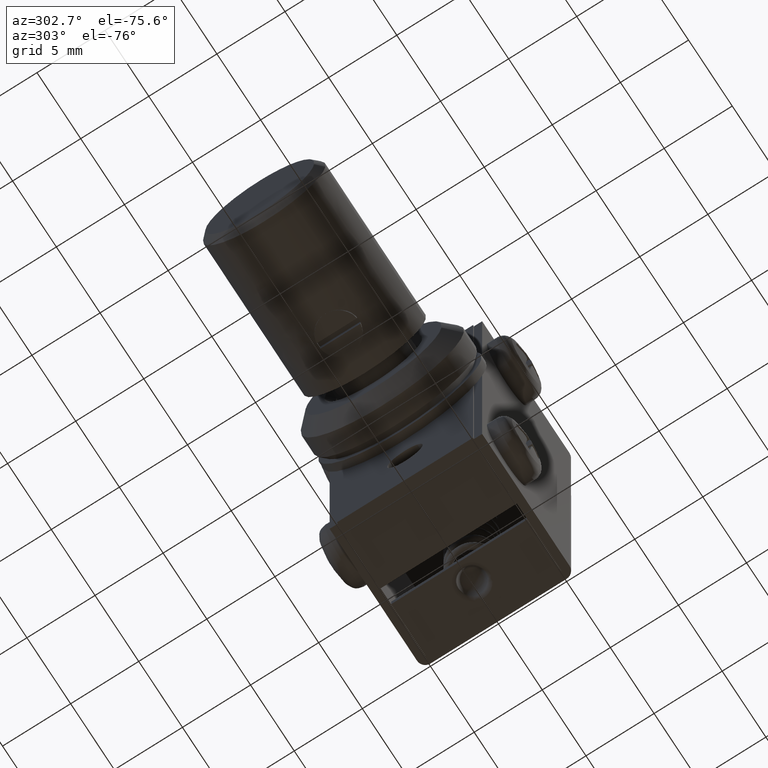
[diagram: clean part render]
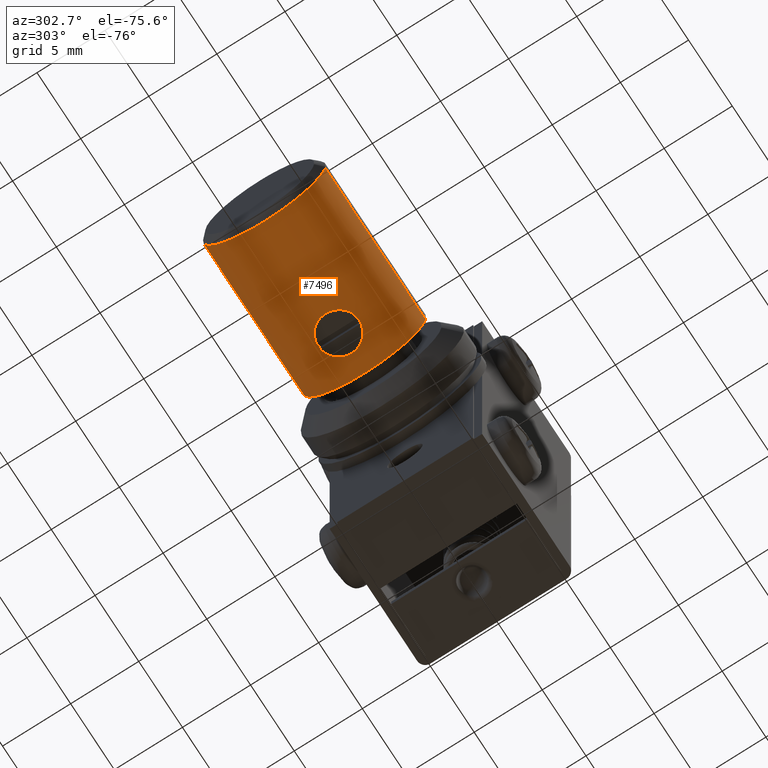
[diagram: same view with one face highlighted and labeled with its STEP entity id]
A machine part, auxiliary view. The second image highlights one B-rep face of the part: STEP entity #7496.
In plain terms, the highlighted face is a freeform B-spline surface patch.
Its self-contained STEP definition (entity closure, byte-faithful):
#6722=CARTESIAN_POINT('',(-18.286910194900141,-1.499943100788841,11.757339103243590));
#6723=VERTEX_POINT('',#6722);
#6729=CARTESIAN_POINT('',(-19.799999867999681,-0.000601220479071,11.500000041541220));
#6730=VERTEX_POINT('',#6729);
#6731=CARTESIAN_POINT('',(-18.286910194900141,-1.499943100788841,11.757339103243590));
#6732=CARTESIAN_POINT('',(-18.290923631829731,-1.499978065659640,11.757351496478339));
#6733=CARTESIAN_POINT('',(-18.294938444242550,-1.499996836806024,11.757358194495421));
#6734=CARTESIAN_POINT('',(-18.348269017307299,-1.500034003594529,11.757371334935920));
#6735=CARTESIAN_POINT('',(-18.397913040297890,-1.497630627131980,11.756519175924019));
#6736=CARTESIAN_POINT('',(-18.497118489641839,-1.487826858147783,11.753071905506530));
#6737=CARTESIAN_POINT('',(-18.546029643918342,-1.480503492336362,11.750504295277629));
#6738=CARTESIAN_POINT('',(-18.690777328980339,-1.451543242596489,11.740488343100070));
#6739=CARTESIAN_POINT('',(-18.784645483707720,-1.422984746000690,11.730725501795201));
#6740=CARTESIAN_POINT('',(-18.921525398014449,-1.366070235271483,11.712314179587111));
#6741=CARTESIAN_POINT('',(-18.966146060199598,-1.344857247231361,11.705591526276820));
#6742=CARTESIAN_POINT('',(-19.052329961596278,-1.298611265096169,11.691381435218521));
#6743=CARTESIAN_POINT('',(-19.135819819846411,-1.248396917844947,11.676357904981270));
#6744=CARTESIAN_POINT('',(-19.214060602778250,-1.190330030179149,11.660167483280659));
#6745=CARTESIAN_POINT('',(-19.289664701234301,-1.128253582058651,11.643616671080240));
#6746=CARTESIAN_POINT('',(-19.326231449977421,-1.095094238418767,11.635136880358409));
#6747=CARTESIAN_POINT('',(-19.429764282671439,-0.991545352117926,11.610024648026320));
#6748=CARTESIAN_POINT('',(-19.491387987963080,-0.916574477402298,11.593562955757060));
#6749=CARTESIAN_POINT('',(-19.572889645236518,-0.795066336027270,11.570601782313579));
#6750=CARTESIAN_POINT('',(-19.598289814260461,-0.752912954434149,11.563215120859180));
#6751=CARTESIAN_POINT('',(-19.644960834755640,-0.665969002086363,11.549334513920030));
#6752=CARTESIAN_POINT('',(-19.665995194597109,-0.621650282336825,11.542913107115609));
#6753=CARTESIAN_POINT('',(-19.722385475642369,-0.486196811386017,11.525415858763290));
#6754=CARTESIAN_POINT('',(-19.751096296298311,-0.392588547145670,11.516102063434690));
#6755=CARTESIAN_POINT('',(-19.780358870952799,-0.246959855684767,11.506518337855020));
#6756=CARTESIAN_POINT('',(-19.787772237266811,-0.197434161493442,11.504063504085369));
#6757=CARTESIAN_POINT('',(-19.797546850503039,-0.098994487997474,11.500819484087931));
#6758=CARTESIAN_POINT('',(-19.799980163901100,-0.049790198619728,11.500006612014859));
#6759=CARTESIAN_POINT('',(-19.799999867999681,-0.000601220479071,11.500000041541220));
#6760=B_SPLINE_CURVE_WITH_KNOTS('',3,(#6731,#6732,#6733,#6734,#6735,#6736,#6737,#6738,#6739,#6740,#6741,#6742,#6743,#6744,#6745,#6746,#6747,#6748,#6749,#6750,#6751,#6752,#6753,#6754,#6755,#6756,#6757,#6758,#6759),.UNSPECIFIED.,.F.,.U.,(4,2,2,2,2,2,1,2,2,2,2,2,2,2,4),(0.248727492934169,0.249999999999984,0.265624999999984,0.281249999999984,0.312499999999984,0.328124999999985,0.343749999999985,0.359374999999985,0.374999999999985,0.406249999999984,0.421874999999984,0.437499999999983,0.468749999999982,0.484374999999981,0.499999999999980),.UNSPECIFIED.);
#6761=EDGE_CURVE('',#6723,#6730,#6760,.T.);
#6763=CARTESIAN_POINT('',(-18.486192046325080,1.488399666176654,11.753275704792030));
#6764=VERTEX_POINT('',#6763);
#6765=CARTESIAN_POINT('',(-19.799999867999681,-0.000601220479071,11.500000041541220));
#6766=CARTESIAN_POINT('',(-19.800019572098250,0.048587757661209,11.499993471067590));
#6767=CARTESIAN_POINT('',(-19.797625666897339,0.097761424564399,11.500793202193391));
#6768=CARTESIAN_POINT('',(-19.787949406334022,0.196077786787791,11.504004825727099));
#6769=CARTESIAN_POINT('',(-19.780605588056378,0.245498821855142,11.506437007910019));
#6770=CARTESIAN_POINT('',(-19.751410611141040,0.391481230088518,11.516000157485010));
#6771=CARTESIAN_POINT('',(-19.722700881240499,0.485317370837879,11.525315895221331));
#6772=CARTESIAN_POINT('',(-19.666248725761371,0.621101526592569,11.542835476363919));
#6773=CARTESIAN_POINT('',(-19.645162943572078,0.665565852327788,11.549273537406609));
#6774=CARTESIAN_POINT('',(-19.598448043050450,0.752644622674947,11.563168921339541));
#6775=CARTESIAN_POINT('',(-19.573162441600580,0.794628726685665,11.570523261315479));
#6776=CARTESIAN_POINT('',(-19.491722499762599,0.916137078972461,11.593472022164629));
#6777=CARTESIAN_POINT('',(-19.430043050687750,0.991260823044187,11.609956379530949));
#6778=CARTESIAN_POINT('',(-19.326157701644298,1.095170854377683,11.635155094161050));
#6779=CARTESIAN_POINT('',(-19.289637391000358,1.128270828619577,11.643621864801130));
#6780=CARTESIAN_POINT('',(-19.214277939629270,1.190156744923125,11.660120688076359));
#6781=CARTESIAN_POINT('',(-19.136239650926800,1.248106532110653,11.676275008398180));
#6782=CARTESIAN_POINT('',(-19.052844388028522,1.298312917483580,11.691291440358761));
#6783=CARTESIAN_POINT('',(-18.966687701487160,1.344588640802639,11.705507332565119));
#6784=CARTESIAN_POINT('',(-18.921988918008228,1.365857285057444,11.712246358598019));
#6785=CARTESIAN_POINT('',(-18.785281017855379,1.422760585207997,11.730650873152131));
#6786=CARTESIAN_POINT('',(-18.691583795092608,1.451310469869472,11.740408908318750));
#6787=CARTESIAN_POINT('',(-18.559310637956511,1.477872499924240,11.749593969649361));
#6788=CARTESIAN_POINT('',(-18.522937752346710,1.483804214173857,11.751664678789110));
#6789=CARTESIAN_POINT('',(-18.486192046325080,1.488399666176654,11.753275704792030));
#6790=B_SPLINE_CURVE_WITH_KNOTS('',3,(#6765,#6766,#6767,#6768,#6769,#6770,#6771,#6772,#6773,#6774,#6775,#6776,#6777,#6778,#6779,#6780,#6781,#6782,#6783,#6784,#6785,#6786,#6787,#6788,#6789),.UNSPECIFIED.,.F.,.U.,(4,2,2,2,2,2,2,2,1,2,2,2,4),(0.499999999999980,0.515624999999979,0.531249999999979,0.562499999999977,0.578124999999977,0.593749999999976,0.624999999999976,0.640624999999976,0.656249999999977,0.671874999999977,0.687499999999977,0.718749999999978,0.730440687380420),.UNSPECIFIED.);
#6791=EDGE_CURVE('',#6730,#6764,#6790,.T.);
#6861=CARTESIAN_POINT('',(-16.800000000002949,-5.707505E-012,11.499999999981540));
#6862=VERTEX_POINT('',#6861);
#6863=CARTESIAN_POINT('',(-18.486192046325080,1.488399666176654,11.753275704792030));
#6864=CARTESIAN_POINT('',(-18.473825928305381,1.489946653259775,11.753817869655469));
#6865=CARTESIAN_POINT('',(-18.461417548175859,1.491341995553251,11.754307973075310));
#6866=CARTESIAN_POINT('',(-18.399517599869402,1.497519882471402,11.756480049667200));
#6867=CARTESIAN_POINT('',(-18.349551955166451,1.499995928899683,11.757357873520281));
#6868=CARTESIAN_POINT('',(-18.201266262025140,1.500008126958253,11.757362186185230));
#6869=CARTESIAN_POINT('',(-18.103376450440351,1.490338459461220,11.753906476674921));
#6870=CARTESIAN_POINT('',(-17.957981822546280,1.461323356507644,11.743870445941671));
#6871=CARTESIAN_POINT('',(-17.909521489041580,1.449125500829974,11.739687055350061));
#6872=CARTESIAN_POINT('',(-17.815063605775858,1.420308022308078,11.729993416249020));
#6873=CARTESIAN_POINT('',(-17.722718332891759,1.387050405926259,11.718965790618279));
#6874=CARTESIAN_POINT('',(-17.634439113288519,1.345148223312709,11.705682664242911));
#6875=CARTESIAN_POINT('',(-17.548174054300489,1.298904455290908,11.691469816875641));
#6876=CARTESIAN_POINT('',(-17.505856359432141,1.273479009264251,11.683860414052260));
#6877=CARTESIAN_POINT('',(-17.383432510491559,1.191451078642319,11.660220837805440));
#6878=CARTESIAN_POINT('',(-17.308401156688760,1.129683471763405,11.643531569059210));
#6879=CARTESIAN_POINT('',(-17.205248313759011,1.026587550366233,11.618519829377870));
#6880=CARTESIAN_POINT('',(-17.172442432800640,0.990467842228252,11.610184431471270));
#6881=CARTESIAN_POINT('',(-17.110060539555150,0.914580064463232,11.593748693290800));
#6882=CARTESIAN_POINT('',(-17.080742595248601,0.875094660235591,11.585715163474401));
#6883=CARTESIAN_POINT('',(-16.999326077247670,0.753501480012070,11.562766554632530));
#6884=CARTESIAN_POINT('',(-16.953227582112760,0.667724296634616,11.548875976304750));
#6885=CARTESIAN_POINT('',(-16.896537288231318,0.531700420480739,11.531288231981890));
#6886=CARTESIAN_POINT('',(-16.879655360038029,0.484836216686740,11.525942310365711));
#6887=CARTESIAN_POINT('',(-16.850808418428919,0.390241993107125,11.516701041196569));
#6888=CARTESIAN_POINT('',(-16.838800162452831,0.342503562788282,11.512793518778400));
#6889=CARTESIAN_POINT('',(-16.809879935653630,0.197981860163235,11.503320562329140));
#6890=CARTESIAN_POINT('',(-16.800000000002960,0.099866606082550,11.499999999982000));
#6891=CARTESIAN_POINT('',(-16.800000000002949,-5.707423E-012,11.499999999981540));
#6892=B_SPLINE_CURVE_WITH_KNOTS('',3,(#6863,#6864,#6865,#6866,#6867,#6868,#6869,#6870,#6871,#6872,#6873,#6874,#6875,#6876,#6877,#6878,#6879,#6880,#6881,#6882,#6883,#6884,#6885,#6886,#6887,#6888,#6889,#6890,#6891),.UNSPECIFIED.,.F.,.U.,(4,2,2,2,2,1,2,2,2,2,2,2,2,2,4),(0.730440687380422,0.734374999999979,0.749999999999979,0.781249999999981,0.796874999999982,0.812499999999984,0.828124999999985,0.843749999999986,0.874999999999989,0.890624999999990,0.906249999999991,0.937499999999994,0.953124999999996,0.968749999999997,1.0),.UNSPECIFIED.);
#6893=EDGE_CURVE('',#6764,#6862,#6892,.T.);
#6895=CARTESIAN_POINT('',(-16.800000000002949,-5.707505E-012,11.499999999981540));
#6896=CARTESIAN_POINT('',(-16.800000000002949,-0.099866606093946,11.499999999981091));
#6897=CARTESIAN_POINT('',(-16.809872635047341,-0.197927511764592,11.503318130740650));
#6898=CARTESIAN_POINT('',(-16.838788067433999,-0.342452046346863,11.512789577097850));
#6899=CARTESIAN_POINT('',(-16.850795701984460,-0.390196044235427,11.516696935720081));
#6900=CARTESIAN_POINT('',(-16.879646154193949,-0.484810275292192,11.525939392889899));
#6901=CARTESIAN_POINT('',(-16.896510716420490,-0.531629961379410,11.531279872389909));
#6902=CARTESIAN_POINT('',(-16.953189934792938,-0.667647353098474,11.548864527976610));
#6903=CARTESIAN_POINT('',(-16.999330703056799,-0.753542117364435,11.562769673277350));
#6904=CARTESIAN_POINT('',(-17.080980857000590,-0.875433558110987,11.585781410119340));
#6905=CARTESIAN_POINT('',(-17.110458527361381,-0.915088345210048,11.593855513063470));
#6906=CARTESIAN_POINT('',(-17.172643785112118,-0.990688427014968,11.610235500635330));
#6907=CARTESIAN_POINT('',(-17.205371976785020,-1.026716044821744,11.618550374039090));
#6908=CARTESIAN_POINT('',(-17.308381321376679,-1.129653831843685,11.643525638125420));
#6909=CARTESIAN_POINT('',(-17.383433973257890,-1.191473543061096,11.660225234880150));
#6910=CARTESIAN_POINT('',(-17.547115094204930,-1.301102149648729,11.691823191654080));
#6911=CARTESIAN_POINT('',(-17.633184162124600,-1.347173886611053,11.706204796066229));
#6912=CARTESIAN_POINT('',(-17.768295102556799,-1.403449362338014,11.724404302199590));
#6913=CARTESIAN_POINT('',(-17.814356747488869,-1.420063114869077,11.729911969512640));
#6914=CARTESIAN_POINT('',(-17.908612946434790,-1.448877080094681,11.739602571930581));
#6915=CARTESIAN_POINT('',(-17.957068703799600,-1.461110260362863,11.743797198115900));
#6916=CARTESIAN_POINT('',(-18.098576776315351,-1.489439042038615,11.753594506961660));
#6917=CARTESIAN_POINT('',(-18.192362322902060,-1.499124713720416,11.757047145604719));
#6918=CARTESIAN_POINT('',(-18.286910194900141,-1.499943100788841,11.757339103243590));
#6919=B_SPLINE_CURVE_WITH_KNOTS('',3,(#6895,#6896,#6897,#6898,#6899,#6900,#6901,#6902,#6903,#6904,#6905,#6906,#6907,#6908,#6909,#6910,#6911,#6912,#6913,#6914,#6915,#6916,#6917,#6918),.UNSPECIFIED.,.F.,.U.,(4,2,2,2,2,2,2,2,2,2,2,4),(0.0,0.031249999999997,0.046874999999996,0.062499999999994,0.093749999999992,0.109374999999990,0.124999999999989,0.156249999999987,0.187499999999985,0.203124999999985,0.218749999999985,0.248727492934169),.UNSPECIFIED.);
#6920=EDGE_CURVE('',#6862,#6723,#6919,.T.);
#7061=CARTESIAN_POINT('',(-26.800000000051298,4.491606592869145,16.274718427931859));
#7062=VERTEX_POINT('',#7061);
#7076=CARTESIAN_POINT('',(-26.800000000051298,-2.617639E-011,11.499999999981600));
#7077=VERTEX_POINT('',#7076);
#7078=CARTESIAN_POINT('',(-26.800000000051305,4.491606592869145,16.274718427931859));
#7079=CARTESIAN_POINT('',(-26.800000000051302,4.499999999973424,16.137487434868792));
#7080=CARTESIAN_POINT('',(-26.800000000051298,4.499999999973424,15.999999999981201));
#7081=CARTESIAN_POINT('',(-26.800000000051302,4.499999999973423,11.499999999981599));
#7082=CARTESIAN_POINT('',(-26.800000000051298,-2.617639E-011,11.499999999981600));
#7090=(BOUNDED_CURVE()B_SPLINE_CURVE(2,(#7078,#7079,#7080,#7081,#7082),.UNSPECIFIED.,.F.,.U.)B_SPLINE_CURVE_WITH_KNOTS((3,2,3),(0.239332962238601,0.250000000000000,0.500000000000000),.UNSPECIFIED.)CURVE()GEOMETRIC_REPRESENTATION_ITEM()RATIONAL_B_SPLINE_CURVE((0.976072041665984,0.987502787899437,1.0,0.707106781186547,1.0))REPRESENTATION_ITEM(''));
#7091=EDGE_CURVE('',#7062,#7077,#7090,.T.);
#7093=CARTESIAN_POINT('',(-26.800000000051298,-4.468542868658357,15.468845943992850));
#7094=VERTEX_POINT('',#7093);
#7095=CARTESIAN_POINT('',(-26.800000000051298,-2.617639E-011,11.499999999981600));
#7096=CARTESIAN_POINT('',(-26.800000000051302,-3.996785366747564,11.499999999981600));
#7097=CARTESIAN_POINT('',(-26.800000000051295,-4.468542868658357,15.468845943992848));
#7105=(BOUNDED_CURVE()B_SPLINE_CURVE(2,(#7095,#7096,#7097),.UNSPECIFIED.,.F.,.U.)B_SPLINE_CURVE_WITH_KNOTS((3,3),(0.500000000000000,0.729562473513150),.UNSPECIFIED.)CURVE()GEOMETRIC_REPRESENTATION_ITEM()RATIONAL_B_SPLINE_CURVE((1.0,0.731050832855823,0.956026754182996))REPRESENTATION_ITEM(''));
#7106=EDGE_CURVE('',#7077,#7094,#7105,.T.);
#7385=CARTESIAN_POINT('',(-15.300000000050900,-4.468542868658357,15.468845943992850));
#7386=VERTEX_POINT('',#7385);
#7404=CARTESIAN_POINT('',(-15.300000000050900,4.491606592869145,16.274718427931859));
#7405=VERTEX_POINT('',#7404);
#7419=CARTESIAN_POINT('',(-15.300000000050900,4.491606592869145,16.274718427931859));
#7420=CARTESIAN_POINT('',(-26.800000000051298,4.491606592869145,16.274718427931859));
#7421=QUASI_UNIFORM_CURVE('',1,(#7419,#7420),.UNSPECIFIED.,.F.,.U.);
#7422=EDGE_CURVE('',#7405,#7062,#7421,.T.);
#7428=CARTESIAN_POINT('',(-15.300000000050900,-4.468542868658357,15.468845943992850));
#7429=CARTESIAN_POINT('',(-26.800000000051298,-4.468542868658357,15.468845943992850));
#7430=QUASI_UNIFORM_CURVE('',1,(#7428,#7429),.UNSPECIFIED.,.F.,.U.);
#7431=EDGE_CURVE('',#7386,#7094,#7430,.T.);
#7436=CARTESIAN_POINT('',(-15.012500000050890,4.491606592871825,16.274718427888029));
#7437=CARTESIAN_POINT('',(-15.012500000050888,4.766325020778653,11.783111834990025));
#7438=CARTESIAN_POINT('',(-15.012500000050890,0.274718427880653,11.508393407083201));
#7439=CARTESIAN_POINT('',(-15.012500000050885,-3.966945708803582,11.248962114685249));
#7440=CARTESIAN_POINT('',(-15.012500000050885,-4.468542868662279,15.468845944025833));
#7441=CARTESIAN_POINT('',(-27.094687500051322,4.491606592871825,16.274718427888029));
#7442=CARTESIAN_POINT('',(-27.094687500051311,4.766325020778653,11.783111834990025));
#7443=CARTESIAN_POINT('',(-27.094687500051322,0.274718427880653,11.508393407083201));
#7444=CARTESIAN_POINT('',(-27.094687500051318,-3.966945708803582,11.248962114685249));
#7445=CARTESIAN_POINT('',(-27.094687500051311,-4.468542868662279,15.468845944025833));
#7453=(BOUNDED_SURFACE()B_SPLINE_SURFACE(2,1,((#7436,#7441),(#7437,#7442),(#7438,#7443),(#7439,#7444),(#7440,#7445)),.UNSPECIFIED.,.F.,.F.,.U.)B_SPLINE_SURFACE_WITH_KNOTS((3,2,3),(2,2),(0.0,7.455844122715043,14.613454480521479),(0.0,12.082187500000430),.UNSPECIFIED.)GEOMETRIC_REPRESENTATION_ITEM()RATIONAL_B_SPLINE_SURFACE(((1.0,1.0),(0.707106781186548,0.707106781186548),(1.0,1.0),(0.718822509939086,0.718822509939086),(0.977505800795127,0.977505800795127)))REPRESENTATION_ITEM('')SURFACE());
#7454=CARTESIAN_POINT('',(-15.300000000050900,-2.617639E-011,11.499999999981600));
#7455=VERTEX_POINT('',#7454);
#7456=CARTESIAN_POINT('',(-15.300000000050900,-2.617639E-011,11.499999999981600));
#7457=CARTESIAN_POINT('',(-15.300000000050906,-3.996785366747564,11.499999999981600));
#7458=CARTESIAN_POINT('',(-15.300000000050906,-4.468542868658357,15.468845943992848));
#7466=(BOUNDED_CURVE()B_SPLINE_CURVE(2,(#7456,#7457,#7458),.UNSPECIFIED.,.F.,.U.)B_SPLINE_CURVE_WITH_KNOTS((3,3),(0.500000000000000,0.729562473513150),.UNSPECIFIED.)CURVE()GEOMETRIC_REPRESENTATION_ITEM()RATIONAL_B_SPLINE_CURVE((1.0,0.731050832855823,0.956026754182996))REPRESENTATION_ITEM(''));
#7467=EDGE_CURVE('',#7455,#7386,#7466,.T.);
#7468=ORIENTED_EDGE('',*,*,#7467,.T.);
#7469=ORIENTED_EDGE('',*,*,#7431,.T.);
#7470=ORIENTED_EDGE('',*,*,#7106,.F.);
#7471=ORIENTED_EDGE('',*,*,#7091,.F.);
#7472=ORIENTED_EDGE('',*,*,#7422,.F.);
#7473=CARTESIAN_POINT('',(-15.300000000050899,4.491606592869145,16.274718427931862));
#7474=CARTESIAN_POINT('',(-15.300000000050899,4.499999999973424,16.137487434868795));
#7475=CARTESIAN_POINT('',(-15.300000000050900,4.499999999973424,15.999999999981201));
#7476=CARTESIAN_POINT('',(-15.300000000050902,4.499999999973423,11.499999999981599));
#7477=CARTESIAN_POINT('',(-15.300000000050900,-2.617639E-011,11.499999999981600));
#7485=(BOUNDED_CURVE()B_SPLINE_CURVE(2,(#7473,#7474,#7475,#7476,#7477),.UNSPECIFIED.,.F.,.U.)B_SPLINE_CURVE_WITH_KNOTS((3,2,3),(0.239332962238601,0.250000000000000,0.500000000000000),.UNSPECIFIED.)CURVE()GEOMETRIC_REPRESENTATION_ITEM()RATIONAL_B_SPLINE_CURVE((0.976072041665984,0.987502787899436,1.0,0.707106781186547,1.0))REPRESENTATION_ITEM(''));
#7486=EDGE_CURVE('',#7405,#7455,#7485,.T.);
#7487=ORIENTED_EDGE('',*,*,#7486,.T.);
#7488=EDGE_LOOP('',(#7468,#7469,#7470,#7471,#7472,#7487));
#7489=FACE_OUTER_BOUND('',#7488,.T.);
#7490=ORIENTED_EDGE('',*,*,#6920,.F.);
#7491=ORIENTED_EDGE('',*,*,#6893,.F.);
#7492=ORIENTED_EDGE('',*,*,#6791,.F.);
#7493=ORIENTED_EDGE('',*,*,#6761,.F.);
#7494=EDGE_LOOP('',(#7490,#7491,#7492,#7493));
#7495=FACE_BOUND('',#7494,.T.);
#7496=ADVANCED_FACE('',(#7489,#7495),#7453,.T.);